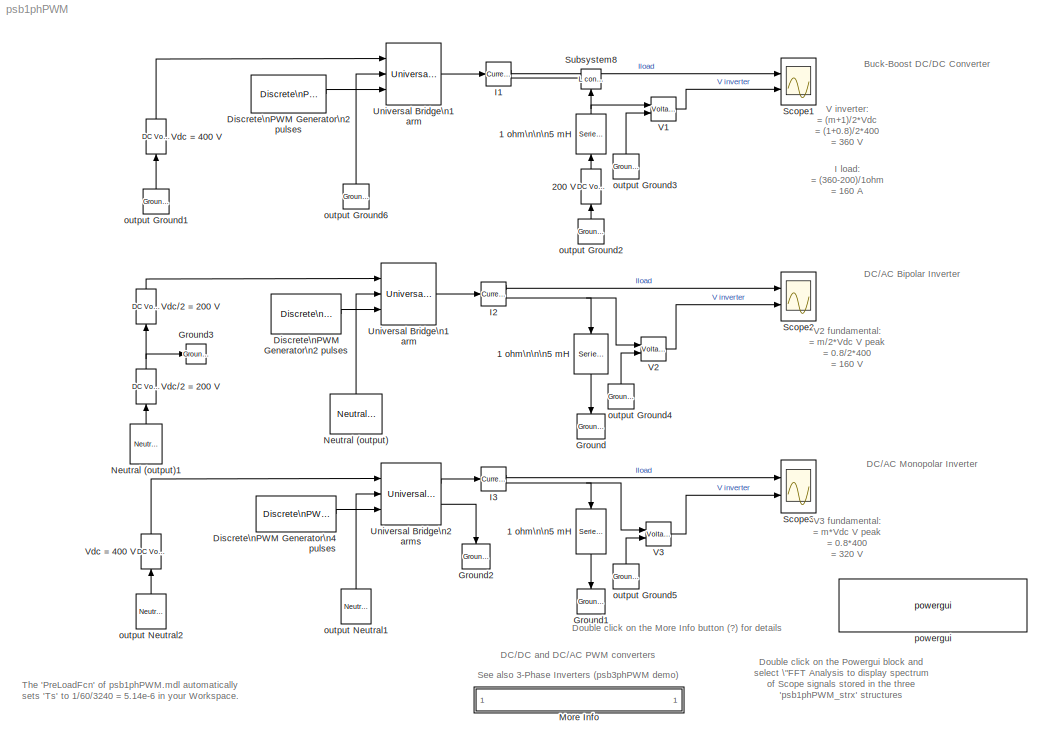
MODEL psb1phPWM
KIND model
CONFIG PreLoadFcn = assignin('base','Ts',[1/60/3240])
BLOCK [Reference] 1 ohm\n\n5 mH   REF=powerlib2/Elements/Series RLC Branch
  PSBOutputType = 1
  Ports = [1, 1]
  SourceBlock = powerlib2/Elements/Series RLC Branch
  SourceType = Series RLC Branch
  Tag = PoWeRsYsTeMbLoCk
  a = 1
  b = 5e-03
  c = inf
  mesure = None
BLOCK [Reference] 1 ohm\n\n\n5 mH  REF=powerlib2/Elements/Series RLC Branch
  PSBOutputType = 1
  Ports = [1, 1]
  SourceBlock = powerlib2/Elements/Series RLC Branch
  SourceType = Series RLC Branch
  Tag = PoWeRsYsTeMbLoCk
  a = 1
  b = 5e-03
  c = inf
  mesure = None
BLOCK [Reference] 1 ohm\n\n\n5 mH    REF=powerlib2/Elements/Series RLC Branch
  PSBOutputType = 1
  Ports = [1, 1]
  SourceBlock = powerlib2/Elements/Series RLC Branch
  SourceType = Series RLC Branch
  Tag = PoWeRsYsTeMbLoCk
  a = 1
  b = 5e-03
  c = inf
  mesure = None
BLOCK [Reference] 200 V  REF=powerlib2/Electrical\nSources/DC Voltage Source
  PSBOutputType = 1
  Ports = [1, 1]
  SourceBlock = powerlib2/Electrical\nSources/DC Voltage Source
  SourceType = DC Voltage Source
  Tag = PoWeRsYsTeMbLoCk
  V = 200
  mesure = None
BLOCK [Reference] Discrete\nPWM Generator\n2 pulses  REF=powerlib_extras/Discrete \nControl Blocks/Discrete\nPWM Generator
  Fc = 1080
  Freq = 60
  GeneratorMode = 1-arm  bridge (2 pulses)
  Internal = on
  Phase = 0
  Ports = [0, 1]
  SourceBlock = powerlib_extras/Discrete \nControl Blocks/Discrete\nPWM Generator
  SourceType = Discrete PWM Generator
  Ts = Ts
  mIndex = 0.8
BLOCK [Reference] Discrete\nPWM Generator\n2 pulses   REF=powerlib_extras/Discrete \nControl Blocks/Discrete\nPWM Generator
  Fc = 1080
  Freq = 0
  GeneratorMode = 1-arm  bridge (2 pulses)
  Internal = on
  Phase = 0
  Ports = [0, 1]
  SourceBlock = powerlib_extras/Discrete \nControl Blocks/Discrete\nPWM Generator
  SourceType = Discrete PWM Generator
  Ts = Ts
  mIndex = 0.8
BLOCK [Reference] Discrete\nPWM Generator\n4 pulses  REF=powerlib_extras/Discrete \nControl Blocks/Discrete\nPWM Generator
  Fc = 1080
  Freq = 60
  GeneratorMode = 2-arm  bridge (4 pulses)
  Internal = on
  Phase = 0
  Ports = [0, 1]
  SourceBlock = powerlib_extras/Discrete \nControl Blocks/Discrete\nPWM Generator
  SourceType = Discrete PWM Generator
  Ts = Ts
  mIndex = 0.8
BLOCK [Reference] Ground  REF=powerlib2/Connectors/Ground (input)
  Ports = [1]
  SourceBlock = powerlib2/Connectors/Ground (input)
  SourceType = Ground
  Tag = PoWeRsYsTeMbLoCk
BLOCK [Reference] Ground1  REF=powerlib2/Connectors/Ground (input)
  Ports = [1]
  SourceBlock = powerlib2/Connectors/Ground (input)
  SourceType = Ground
  Tag = PoWeRsYsTeMbLoCk
BLOCK [Reference] Ground2  REF=powerlib2/Connectors/Ground (input)
  Ports = [1]
  SourceBlock = powerlib2/Connectors/Ground (input)
  SourceType = Ground
  Tag = PoWeRsYsTeMbLoCk
BLOCK [Reference] Ground3  REF=powerlib2/Connectors/Ground (input)
  Ports = [1]
  SourceBlock = powerlib2/Connectors/Ground (input)
  SourceType = Ground
  Tag = PoWeRsYsTeMbLoCk
BLOCK [Reference] I1  REF=powerlib2/Measurements/Current Measurement
  OutputType = Magnitude
  PSBOutputType = 01
  PSBequivalent = 0
  PhasorSimulation = off
  Ports = [1, 2]
  SourceBlock = powerlib2/Measurements/Current Measurement
  SourceType = Current Measurement
  Tag = PoWeRsYsTeMmEaSuReMeNt
BLOCK [Reference] I2  REF=powerlib2/Measurements/Current Measurement
  OutputType = Magnitude
  PSBOutputType = 01
  PSBequivalent = 0
  PhasorSimulation = off
  Ports = [1, 2]
  SourceBlock = powerlib2/Measurements/Current Measurement
  SourceType = Current Measurement
  Tag = PoWeRsYsTeMmEaSuReMeNt
BLOCK [Reference] I3   REF=powerlib2/Measurements/Current Measurement
  OutputType = Magnitude
  PSBOutputType = 01
  PSBequivalent = 0
  PhasorSimulation = off
  Ports = [1, 2]
  SourceBlock = powerlib2/Measurements/Current Measurement
  SourceType = Current Measurement
  Tag = PoWeRsYsTeMmEaSuReMeNt
BLOCK [SubSystem] More Info
  MaskDisplay = disp('? : Double click here for more info')
  MaskIconFrame = off
  MaskIconOpaque = on
  MaskIconRotate = none
  MaskIconUnits = autoscale
  MinAlgLoopOccurrences = off
  Ports = []
  RTWSystemCode = Auto
  TreatAsAtomicUnit = off
BLOCK [Reference] Neutral (output)  REF=powerlib2/Connectors/Neutral (output)
  PSBOutputType = 1
  Ports = [0, 1]
  SourceBlock = powerlib2/Connectors/Neutral (output)
  SourceType = Neutral
  Tag = PoWeRsYsTeMbLoCk
  no = 2
BLOCK [Reference] Neutral (output)1  REF=powerlib2/Connectors/Neutral (output)
  PSBOutputType = 1
  Ports = [0, 1]
  SourceBlock = powerlib2/Connectors/Neutral (output)
  SourceType = Neutral
  Tag = PoWeRsYsTeMbLoCk
  no = 2
BLOCK [Scope] Scope1 
  DataFormat = StructureWithTime
  LimitDataPoints = off
  MaxDataPoints = 500000
  NumInputPorts = 2
  Ports = [2]
  SaveName = psb1phPWM1_str
  SaveToWorkspace = on
  TimeRange = 0.1
  YMax = 175~400
  YMin = 0~-50
  ZoomMode = yonly
BLOCK [Scope] Scope2
  DataFormat = StructureWithTime
  LimitDataPoints = off
  MaxDataPoints = 500000
  NumInputPorts = 2
  Ports = [2]
  SaveName = psb1phPWM2_str
  SaveToWorkspace = on
  TimeRange = 0.1
  YMax = 100~300
  YMin = -100~-300
  ZoomMode = yonly
BLOCK [Scope] Scope3
  DataFormat = StructureWithTime
  LimitDataPoints = off
  MaxDataPoints = 500000
  NumInputPorts = 2
  Ports = [2]
  SaveName = psb1phPWM3_str
  SaveToWorkspace = on
  TimeRange = 0.1
  YMax = 200~500
  YMin = -200~-500
  ZoomMode = yonly
BLOCK [Reference] Subsystem8  REF=powerlib2/Connectors/L connector
  Ports = [1, 0, 1]
  SourceBlock = powerlib2/Connectors/L connector
  SourceType = Bus Bar
  Tag = PoWeRsYsTeMbLoCk
BLOCK [Reference] Universal Bridge\n1 arm  REF=powerlib2/Power\nElectronics/Universal Bridge
  Lon = 0
  PSBOutputType = 111
  Ports = [3, 1]
  Ron = 1e-4
  SourceBlock = powerlib2/Power\nElectronics/Universal Bridge
  SourceType = Universal Bridge
  Tag = PoWeRsYsTeMbLoCk
  VFs = [  1  1  ]
  Vf = .8
  arms = 1
  cf = inf
  confi = ABC as output terminals
  device = IGBT / Diodes
  gtoparameters = [ 10e-6 , 20e-6 ]
  igbtparameters = [ 1e-6 , 2e-6 ]
  injcc = 10000
  mesure = None
BLOCK [Reference] Universal Bridge\n1 arm   REF=powerlib2/Power\nElectronics/Universal Bridge
  Lon = 0
  PSBOutputType = 111
  Ports = [3, 1]
  Ron = 1e-4
  SourceBlock = powerlib2/Power\nElectronics/Universal Bridge
  SourceType = Universal Bridge
  Tag = PoWeRsYsTeMbLoCk
  VFs = [  1  1  ]
  Vf = .8
  arms = 1
  cf = inf
  confi = ABC as output terminals
  device = IGBT / Diodes
  gtoparameters = [ 10e-6 , 20e-6 ]
  igbtparameters = [ 1e-6 , 2e-6 ]
  injcc = 10000
  mesure = None
BLOCK [Reference] Universal Bridge\n2 arms  REF=powerlib2/Power\nElectronics/Universal Bridge
  Lon = 0
  PSBOutputType = 111
  Ports = [3, 2]
  Ron = 1e-4
  SourceBlock = powerlib2/Power\nElectronics/Universal Bridge
  SourceType = Universal Bridge
  Tag = PoWeRsYsTeMbLoCk
  VFs = [  1  1  ]
  Vf = .8
  arms = 2
  cf = inf
  confi = ABC as output terminals
  device = IGBT / Diodes
  gtoparameters = [ 10e-6 , 20e-6 ]
  igbtparameters = [ 1e-6 , 2e-6 ]
  injcc = 10000
  mesure = None
BLOCK [Reference] V1   REF=powerlib2/Measurements/Voltage Measurement
  OutputType = Magnitude
  PSBOutputType = 0
  PSBequivalent = 0
  PhasorSimulation = off
  Ports = [2, 1]
  SourceBlock = powerlib2/Measurements/Voltage Measurement
  SourceType = Voltage Measurement
  Tag = PoWeRsYsTeMmEaSuReMeNt
BLOCK [Reference] V2  REF=powerlib2/Measurements/Voltage Measurement
  OutputType = Magnitude
  PSBOutputType = 0
  PSBequivalent = 0
  PhasorSimulation = off
  Ports = [2, 1]
  SourceBlock = powerlib2/Measurements/Voltage Measurement
  SourceType = Voltage Measurement
  Tag = PoWeRsYsTeMmEaSuReMeNt
BLOCK [Reference] V3  REF=powerlib2/Measurements/Voltage Measurement
  OutputType = Magnitude
  PSBOutputType = 0
  PSBequivalent = 1
  PhasorSimulation = off
  Ports = [2, 1]
  SourceBlock = powerlib2/Measurements/Voltage Measurement
  SourceType = Voltage Measurement
  Tag = PoWeRsYsTeMmEaSuReMeNt
BLOCK [Reference] Vdc  = 400 V    REF=powerlib2/Electrical\nSources/DC Voltage Source
  PSBOutputType = 1
  Ports = [1, 1]
  SourceBlock = powerlib2/Electrical\nSources/DC Voltage Source
  SourceType = DC Voltage Source
  Tag = PoWeRsYsTeMbLoCk
  V = 400
  mesure = None
BLOCK [Reference] Vdc = 400 V  REF=powerlib2/Electrical\nSources/DC Voltage Source
  PSBOutputType = 1
  Ports = [1, 1]
  SourceBlock = powerlib2/Electrical\nSources/DC Voltage Source
  SourceType = DC Voltage Source
  Tag = PoWeRsYsTeMbLoCk
  V = 400
  mesure = None
BLOCK [Reference] Vdc//2 = 200 V  REF=powerlib2/Electrical\nSources/DC Voltage Source
  PSBOutputType = 1
  Ports = [1, 1]
  SourceBlock = powerlib2/Electrical\nSources/DC Voltage Source
  SourceType = DC Voltage Source
  Tag = PoWeRsYsTeMbLoCk
  V = 200
  mesure = None
BLOCK [Reference] Vdc//2 = 200 V   REF=powerlib2/Electrical\nSources/DC Voltage Source
  PSBOutputType = 1
  Ports = [1, 1]
  SourceBlock = powerlib2/Electrical\nSources/DC Voltage Source
  SourceType = DC Voltage Source
  Tag = PoWeRsYsTeMbLoCk
  V = 200
  mesure = None
BLOCK [Reference] output Ground1  REF=powerlib2/Connectors/Ground (output)
  PSBOutputType = 1
  Ports = [0, 1]
  SourceBlock = powerlib2/Connectors/Ground (output)
  SourceType = Ground
  Tag = PoWeRsYsTeMbLoCk
BLOCK [Reference] output Ground2  REF=powerlib2/Connectors/Ground (output)
  PSBOutputType = 1
  Ports = [0, 1]
  SourceBlock = powerlib2/Connectors/Ground (output)
  SourceType = Ground
  Tag = PoWeRsYsTeMbLoCk
BLOCK [Reference] output Ground3  REF=powerlib2/Connectors/Ground (output)
  PSBOutputType = 1
  Ports = [0, 1]
  SourceBlock = powerlib2/Connectors/Ground (output)
  SourceType = Ground
  Tag = PoWeRsYsTeMbLoCk
BLOCK [Reference] output Ground4  REF=powerlib2/Connectors/Ground (output)
  PSBOutputType = 1
  Ports = [0, 1]
  SourceBlock = powerlib2/Connectors/Ground (output)
  SourceType = Ground
  Tag = PoWeRsYsTeMbLoCk
BLOCK [Reference] output Ground5  REF=powerlib2/Connectors/Ground (output)
  PSBOutputType = 1
  Ports = [0, 1]
  SourceBlock = powerlib2/Connectors/Ground (output)
  SourceType = Ground
  Tag = PoWeRsYsTeMbLoCk
BLOCK [Reference] output Ground6  REF=powerlib2/Connectors/Ground (output)
  PSBOutputType = 1
  Ports = [0, 1]
  SourceBlock = powerlib2/Connectors/Ground (output)
  SourceType = Ground
  Tag = PoWeRsYsTeMbLoCk
BLOCK [Reference] output Neutral1  REF=powerlib2/Connectors/Neutral (output)
  PSBOutputType = 1
  Ports = [0, 1]
  SourceBlock = powerlib2/Connectors/Neutral (output)
  SourceType = Neutral
  Tag = PoWeRsYsTeMbLoCk
  no = 3
BLOCK [Reference] output Neutral2  REF=powerlib2/Connectors/Neutral (output)
  PSBOutputType = 1
  Ports = [0, 1]
  SourceBlock = powerlib2/Connectors/Neutral (output)
  SourceType = Neutral
  Tag = PoWeRsYsTeMbLoCk
  no = 3
BLOCK [Reference] powergui  REF=powerlib2/powergui
  DisplayStyle = off
  Frange = [0:2:500]
  FreqAxis = off
  MaxFrequency = 5000
  Ports = []
  RmsSteady = 1
  SourceBlock = powerlib2/powergui
  SourceType = PSB option menu block
  StartTime = 0.1-2/60
  Ts = Ts
  Xlog = off
  Ylog = off
  ZoomFFT = on
  cycles = 1
  display = off
  echomessages = off
  frequency = 60
  frequencyindice = 1
  frequencyindicesteady = 1
  fundamental = 60
  methode = off
  save = off
  structure = psb1phPWM1_str
  variable = ZData
ANNOTATION (root): DC/AC Bipolar Inverter
ANNOTATION (root): DC/DC and DC/AC PWM converters
ANNOTATION (root): Buck-Boost DC/DC Converter
ANNOTATION (root): DC/AC Monopolar Inverter
ANNOTATION (root): Double click on the More Info button (?) for details
ANNOTATION (root): Double click on the Powergui block and\nselect \"FFT Analysis to display spectrum\nof Scope signals stored in the three\n'psb1phPWM_strx' structures
ANNOTATION (root): I load:\n= (360-200)/1ohm \n= 160 A
ANNOTATION (root): See also 3-Phase Inverters (psb3phPWM demo)
ANNOTATION (root): The 'PreLoadFcn' of psb1phPWM.mdl automatically\nsets 'Ts' to 1/60/3240 = 5.14e-6 in your Workspace.
ANNOTATION (root): V inverter:\n= (m+1)/2*Vdc \n= (1+0.8)/2*400\n= 360 V
ANNOTATION (root): V2 fundamental:\n= m/2*Vdc V peak\n= 0.8/2*400 \n= 160 V
ANNOTATION (root): V3 fundamental:\n= m*Vdc V peak\n= 0.8*400 \n= 320 V
ANNOTATION More Info: Circuit Description
ANNOTATION More Info: Demonstration
ANNOTATION More Info: G. Sybille and P. Giroux (Hydro-Quebec)
ANNOTATION More Info: Run the simulation and observe the following two waveforms on the Scope blocks:\ncurrent into the load (trace 1), voltage generated by the PWM inverter (trace 2). \n\nOnce the simulation is completed, open the Powergui and select 'FFT Analysis' to display the 0 - 5000 Hz frequency spectrum of signals saved \nin the three 'psb1phPWMx_str' structures. The FFT will be performed on a 2-cycle window st...<+1077ch>
ANNOTATION More Info: The system consists of three independant circuits illustrating various PWM DC/DC and DC/AC inverters.\nAll converters are controlled in open loop with the Discrete PWM Generator block available in the Extras/Discrete Control Blocks library.\nThe three circuits use the same DC voltage (Vdc = 400V), carrier frequency (1080 Hz) and modulation index (m = 0.8) .\nFrom top to bottom, the three circuits ...<+444ch>
ANNOTATION More Info: This demonstration illustrates use of the Universal Bridge and\nDiscrete PWM Pulse Generator blocks. It also demonstrates \nharmonic analysis of PWM waveforms using the Powergui/FFT tool.
LINE 1 ohm\n\n5 mH :1 -> Ground1:1
NET 1 ohm\n\n\n5 mH  :1 -> Subsystem8:1, V1 :1
LINE 1 ohm\n\n\n5 mH:1 -> Ground:1
LINE 200 V:1 -> 1 ohm\n\n\n5 mH  :1
LINE Discrete\nPWM Generator\n2 pulses :1 -> Universal Bridge\n1 arm:3
LINE Discrete\nPWM Generator\n2 pulses:1 -> Universal Bridge\n1 arm :3
LINE Discrete\nPWM Generator\n4 pulses:1 -> Universal Bridge\n2 arms:3
LINE I1:1 -> Scope1 :1
LINE I1:2 -> Subsystem8:enable
LINE I2:1 -> Scope2:1
NET I2:2 -> 1 ohm\n\n\n5 mH:1, V2:1
LINE I3 :1 -> Scope3:1
NET I3 :2 -> 1 ohm\n\n5 mH :1, V3:1
LINE Neutral (output)1:1 -> Vdc//2 = 200 V :1
LINE Neutral (output):1 -> Universal Bridge\n1 arm :2
LINE Universal Bridge\n1 arm :1 -> I2:1
LINE Universal Bridge\n1 arm:1 -> I1:1
LINE Universal Bridge\n2 arms:1 -> I3 :1
LINE Universal Bridge\n2 arms:2 -> Ground2:1
LINE V1 :1 -> Scope1 :2
LINE V2:1 -> Scope2:2
LINE V3:1 -> Scope3:2
LINE Vdc  = 400 V  :1 -> Universal Bridge\n2 arms:1
LINE Vdc = 400 V:1 -> Universal Bridge\n1 arm:1
NET Vdc//2 = 200 V :1 -> Ground3:1, Vdc//2 = 200 V:1
LINE Vdc//2 = 200 V:1 -> Universal Bridge\n1 arm :1
LINE output Ground1:1 -> Vdc = 400 V:1
LINE output Ground2:1 -> 200 V:1
LINE output Ground3:1 -> V1 :2
LINE output Ground4:1 -> V2:2
LINE output Ground5:1 -> V3:2
LINE output Ground6:1 -> Universal Bridge\n1 arm:2
LINE output Neutral1:1 -> Universal Bridge\n2 arms:2
LINE output Neutral2:1 -> Vdc  = 400 V  :1
note: NET lines group one-source signal fan-out (src -> all destinations, sorted); 1:1 wires keep LINE
